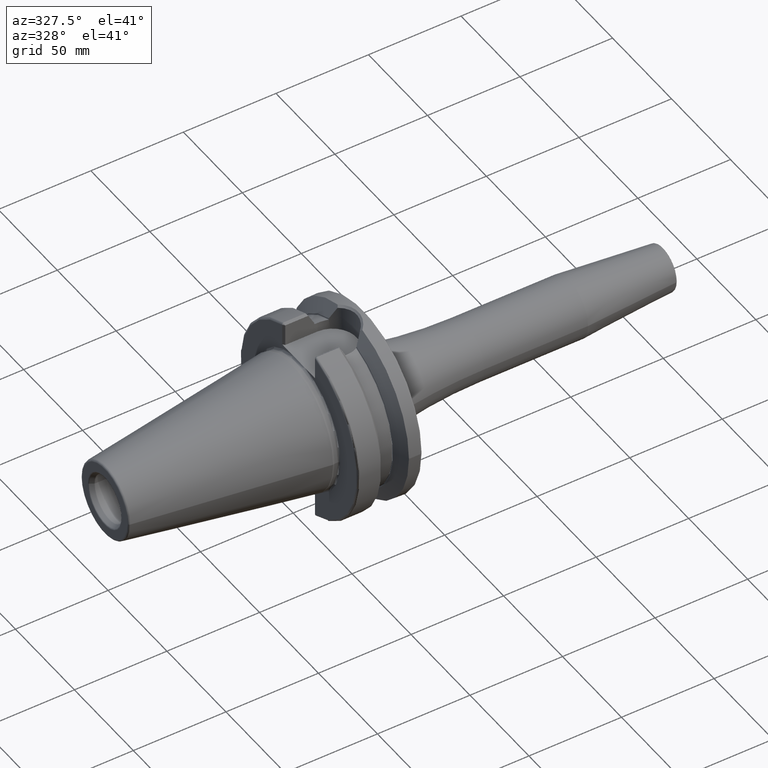
[diagram: clean part render]
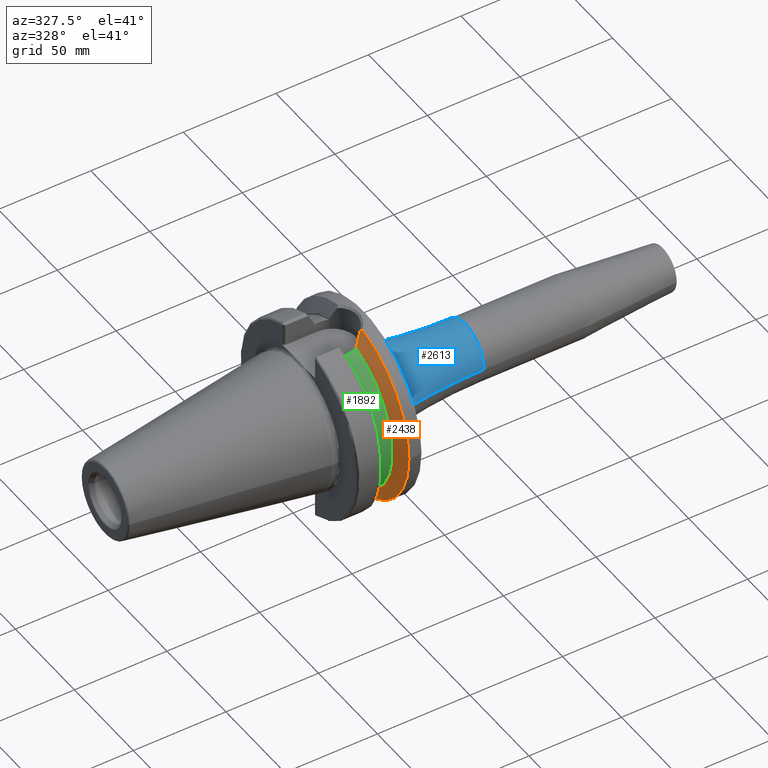
[diagram: same view with three faces highlighted in distinct colors, each labeled with its STEP entity id]
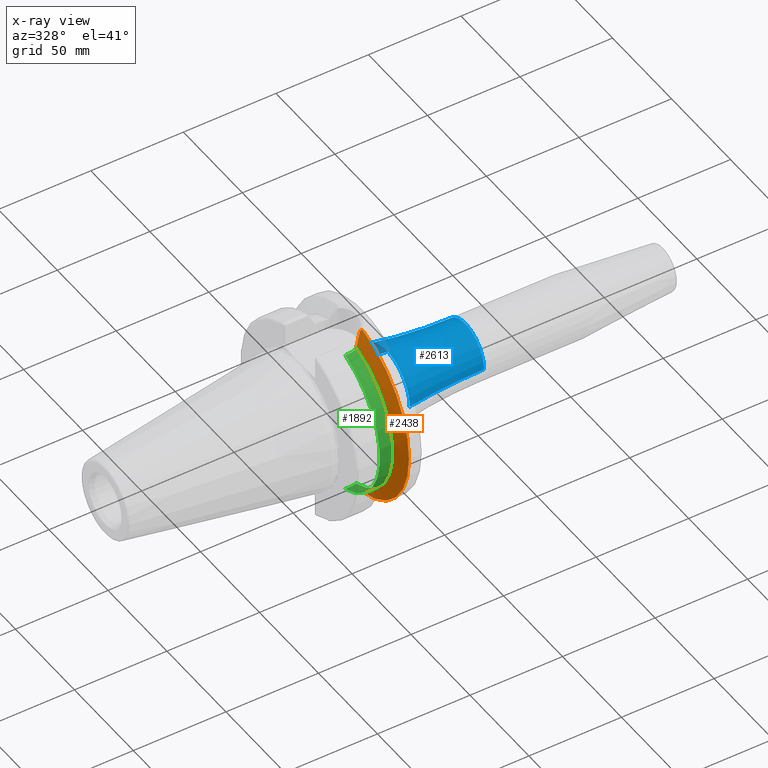
[diagram: x-ray of the same camera — body ghosted, the three highlighted faces saturated]
A machine part, auxiliary view with three faces highlighted in distinct colors.
The next image is the same camera in x-ray (body ghosted, the three faces saturated) — at least one of them is partly hidden behind the body in this view.
Their STEP definitions:

[orange] entity #2438 — the highlighted conical surface has half-angle 60 deg.
#245=CARTESIAN_POINT('',(3.073066823617E1,0.E0,0.E0));
#246=DIRECTION('',(1.E0,0.E0,0.E0));
#247=DIRECTION('',(0.E0,-1.E0,0.E0));
#248=AXIS2_PLACEMENT_3D('',#245,#246,#247);
#391=CARTESIAN_POINT('',(3.016210431090E1,-9.422168385896E0,-4.808834737145E1));
#392=CARTESIAN_POINT('',(2.984184465633E1,-9.721776927818E0,-4.746439031418E1));
#393=CARTESIAN_POINT('',(2.916110296190E1,-1.029742776940E1,-4.613939859477E1));
#394=CARTESIAN_POINT('',(2.801848253867E1,-1.107377940524E1,-4.392131510326E1));
#395=CARTESIAN_POINT('',(2.717774587881E1,-1.152030945269E1,-4.229484073698E1));
#396=CARTESIAN_POINT('',(2.67375E1,-1.172273032403E1,-4.144514217760E1));
#509=CARTESIAN_POINT('',(2.67375E1,-1.172273032403E1,4.144514217760E1));
#510=CARTESIAN_POINT('',(2.716326249817E1,-1.152696877347E1,4.226688702234E1));
#511=CARTESIAN_POINT('',(2.797767730262E1,-1.109641946289E1,4.384231514855E1));
#512=CARTESIAN_POINT('',(2.908877542636E1,-1.035012398508E1,4.599886190686E1));
#513=CARTESIAN_POINT('',(2.975376209181E1,-9.797469511785E0,4.729292626465E1));
#514=CARTESIAN_POINT('',(3.006746015187E1,-9.509826559925E0,4.790397267337E1));
#763=CARTESIAN_POINT('',(2.67375E1,0.E0,0.E0));
#764=DIRECTION('',(-1.E0,0.E0,0.E0));
#765=DIRECTION('',(0.E0,-2.721714149834E-1,-9.622487832499E-1));
#766=AXIS2_PLACEMENT_3D('',#763,#764,#765);
#768=CARTESIAN_POINT('',(3.073066823617E1,-1.024362896192E1,-4.892666166765E1));
#769=CARTESIAN_POINT('',(3.066616058198E1,-1.015105563406E1,-4.883189036884E1));
#770=CARTESIAN_POINT('',(3.053803749239E1,-9.966777409929E0,-4.864343408956E1));
#771=CARTESIAN_POINT('',(3.034851551012E1,-9.692952413043E0,-4.836399253968E1));
#772=CARTESIAN_POINT('',(3.022394652802E1,-9.512141392294E0,-4.817986911933E1));
#773=CARTESIAN_POINT('',(3.016210431090E1,-9.422168385896E0,-4.808834737145E1));
#792=CARTESIAN_POINT('',(3.073066823617E1,0.E0,0.E0));
#793=DIRECTION('',(1.E0,0.E0,0.E0));
#794=DIRECTION('',(0.E0,-2.094051574285E-1,9.778289625708E-1));
#795=AXIS2_PLACEMENT_3D('',#792,#793,#794);
#975=CARTESIAN_POINT('',(3.006746015187E1,-9.509826559925E0,4.790397267337E1));
#976=CARTESIAN_POINT('',(3.013934013849E1,-9.614488815529E0,4.801012460295E1));
#977=CARTESIAN_POINT('',(3.028430182064E1,-9.824984272055E0,4.822389705980E1));
#978=CARTESIAN_POINT('',(3.050537248019E1,-1.014426259119E1,4.854898701617E1));
#979=CARTESIAN_POINT('',(3.065516521337E1,-1.035945529402E1,4.876865319706E1));
#980=CARTESIAN_POINT('',(3.073066823617E1,-1.046764030696E1,4.887922526651E1));
#1232=CARTESIAN_POINT('',(2.67375E1,-1.172273032403E1,-4.144514217760E1));
#1233=CARTESIAN_POINT('',(2.67375E1,-1.172273032403E1,4.144514217760E1));
#1234=VERTEX_POINT('',#1232);
#1235=VERTEX_POINT('',#1233);
#1248=CARTESIAN_POINT('',(3.073066823617E1,-4.99875E1,-1.224340637448E-14));
#1249=CARTESIAN_POINT('',(3.073066823617E1,-1.024362896192E1,
-4.892666166765E1));
#1250=VERTEX_POINT('',#1248);
#1251=VERTEX_POINT('',#1249);
#1256=CARTESIAN_POINT('',(3.073066823617E1,-1.046764030696E1,4.887922526651E1));
#1257=VERTEX_POINT('',#1256);
#1348=VERTEX_POINT('',#514);
#1356=VERTEX_POINT('',#391);
#2421=CARTESIAN_POINT('',(2.873408411809E1,0.E0,0.E0));
#2422=DIRECTION('',(1.E0,0.E0,0.E0));
#2423=DIRECTION('',(0.E0,-1.E0,0.E0));
#2424=AXIS2_PLACEMENT_3D('',#2421,#2422,#2423);
#2425=CONICAL_SURFACE('',#2424,4.652931486589E1,6.E1);
#2427=ORIENTED_EDGE('',*,*,#2426,.T.);
#2428=ORIENTED_EDGE('',*,*,#1777,.T.);
#2430=ORIENTED_EDGE('',*,*,#2429,.T.);
#2431=ORIENTED_EDGE('',*,*,#1900,.T.);
#2432=ORIENTED_EDGE('',*,*,#1945,.T.);
#2433=ORIENTED_EDGE('',*,*,#1996,.T.);
#2435=ORIENTED_EDGE('',*,*,#2434,.T.);
#2436=EDGE_LOOP('',(#2427,#2428,#2430,#2431,#2432,#2433,#2435));
#2437=FACE_OUTER_BOUND('',#2436,.F.);
#2438=ADVANCED_FACE('',(#2437),#2425,.T.);
#249=CIRCLE('',#248,4.99875E1);
#397=B_SPLINE_CURVE_WITH_KNOTS('',3,(#391,#392,#393,#394,#395,#396),
.UNSPECIFIED.,.F.,.F.,(4,1,1,4),(0.E0,3.333333333333E-1,6.666666666667E-1,1.E0),
.UNSPECIFIED.);
#515=B_SPLINE_CURVE_WITH_KNOTS('',3,(#509,#510,#511,#512,#513,#514),
.UNSPECIFIED.,.F.,.F.,(4,1,1,4),(0.E0,3.333333333333E-1,6.666666666667E-1,1.E0),
.UNSPECIFIED.);
#767=CIRCLE('',#766,4.307112973177E1);
#774=B_SPLINE_CURVE_WITH_KNOTS('',3,(#768,#769,#770,#771,#772,#773),
.UNSPECIFIED.,.F.,.F.,(4,1,1,4),(0.E0,3.333333333333E-1,6.666666666667E-1,1.E0),
.UNSPECIFIED.);
#796=CIRCLE('',#795,4.99875E1);
#981=B_SPLINE_CURVE_WITH_KNOTS('',3,(#975,#976,#977,#978,#979,#980),
.UNSPECIFIED.,.F.,.F.,(4,1,1,4),(0.E0,3.333333333333E-1,6.666666666667E-1,1.E0),
.UNSPECIFIED.);
#1777=EDGE_CURVE('',#1250,#1251,#249,.T.);
#1900=EDGE_CURVE('',#1356,#1234,#397,.T.);
#1945=EDGE_CURVE('',#1234,#1235,#767,.T.);
#1996=EDGE_CURVE('',#1235,#1348,#515,.T.);
#2426=EDGE_CURVE('',#1257,#1250,#796,.T.);
#2429=EDGE_CURVE('',#1251,#1356,#774,.T.);
#2434=EDGE_CURVE('',#1348,#1257,#981,.T.);

[blue] entity #2613 — the highlighted toroidal blend (fillet) surface has major radius 266 mm and minor (blend) radius 250 mm.
#854=CARTESIAN_POINT('',(5.044680851064E1,0.E0,0.E0));
#855=DIRECTION('',(1.E0,0.E0,0.E0));
#856=DIRECTION('',(0.E0,1.E0,0.E0));
#857=AXIS2_PLACEMENT_3D('',#854,#855,#856);
#864=CARTESIAN_POINT('',(9.3E1,-2.66E2,-6.515120971464E-14));
#865=DIRECTION('',(0.E0,0.E0,1.E0));
#866=DIRECTION('',(0.E0,1.E0,0.E0));
#867=AXIS2_PLACEMENT_3D('',#864,#865,#866);
#869=CARTESIAN_POINT('',(9.3E1,2.66E2,3.257560485732E-14));
#870=DIRECTION('',(0.E0,0.E0,-1.E0));
#871=DIRECTION('',(0.E0,-1.E0,0.E0));
#872=AXIS2_PLACEMENT_3D('',#869,#870,#871);
#892=CARTESIAN_POINT('',(9.3E1,0.E0,0.E0));
#893=DIRECTION('',(1.E0,0.E0,0.E0));
#894=DIRECTION('',(0.E0,1.E0,0.E0));
#895=AXIS2_PLACEMENT_3D('',#892,#893,#894);
#1431=CARTESIAN_POINT('',(9.3E1,1.6E1,0.E0));
#1432=CARTESIAN_POINT('',(9.3E1,-1.6E1,0.E0));
#1433=VERTEX_POINT('',#1431);
#1434=VERTEX_POINT('',#1432);
#1439=CARTESIAN_POINT('',(5.044680851064E1,-1.964816644874E1,0.E0));
#1440=CARTESIAN_POINT('',(5.044680851064E1,1.964816644874E1,0.E0));
#1441=VERTEX_POINT('',#1439);
#1442=VERTEX_POINT('',#1440);
#2599=CARTESIAN_POINT('',(9.3E1,0.E0,0.E0));
#2600=DIRECTION('',(1.E0,0.E0,0.E0));
#2601=DIRECTION('',(0.E0,-1.E0,0.E0));
#2602=AXIS2_PLACEMENT_3D('',#2599,#2600,#2601);
#2603=TOROIDAL_SURFACE('',#2602,2.66E2,2.5E2);
#2604=ORIENTED_EDGE('',*,*,#2593,.F.);
#2606=ORIENTED_EDGE('',*,*,#2605,.F.);
#2608=ORIENTED_EDGE('',*,*,#2607,.T.);
#2610=ORIENTED_EDGE('',*,*,#2609,.T.);
#2611=EDGE_LOOP('',(#2604,#2606,#2608,#2610));
#2612=FACE_OUTER_BOUND('',#2611,.F.);
#2613=ADVANCED_FACE('',(#2612),#2603,.F.);
#858=CIRCLE('',#857,1.964816644874E1);
#868=CIRCLE('',#867,2.5E2);
#873=CIRCLE('',#872,2.5E2);
#896=CIRCLE('',#895,1.6E1);
#2593=EDGE_CURVE('',#1442,#1441,#858,.T.);
#2605=EDGE_CURVE('',#1433,#1442,#873,.T.);
#2607=EDGE_CURVE('',#1433,#1434,#896,.T.);
#2609=EDGE_CURVE('',#1434,#1441,#868,.T.);

[green] entity #1892 — the highlighted cylindrical surface (partial cylindrical patch) has radius 42.375 mm, axis along (1, 0, 0).
#308=DIRECTION('',(1.E0,0.E0,0.E0));
#309=VECTOR('',#308,1.435E0);
#310=CARTESIAN_POINT('',(1.99125E1,-1.29025E1,-4.036293000700E1));
#311=LINE('',#310,#309);
#368=CARTESIAN_POINT('',(2.64875E1,-1.183447955129E1,-4.068888937720E1));
#369=CARTESIAN_POINT('',(2.593767013313E1,-1.207328392824E1,-4.061943244291E1));
#370=CARTESIAN_POINT('',(2.482251458205E1,-1.246756636174E1,-4.050035379603E1));
#371=CARTESIAN_POINT('',(2.309259987910E1,-1.282394305606E1,-4.038817378858E1));
#372=CARTESIAN_POINT('',(2.193211835188E1,-1.29025E1,-4.036293000700E1));
#373=CARTESIAN_POINT('',(2.13475E1,-1.29025E1,-4.036293000700E1));
#375=CARTESIAN_POINT('',(1.99125E1,0.E0,0.E0));
#376=DIRECTION('',(-1.E0,0.E0,0.E0));
#377=DIRECTION('',(0.E0,-3.044837758112E-1,-9.525175222891E-1));
#378=AXIS2_PLACEMENT_3D('',#375,#376,#377);
#380=CARTESIAN_POINT('',(2.13475E1,-1.29025E1,4.036293000700E1));
#381=CARTESIAN_POINT('',(2.193211835188E1,-1.29025E1,4.036293000700E1));
#382=CARTESIAN_POINT('',(2.309259987910E1,-1.282394305606E1,4.038817378858E1));
#383=CARTESIAN_POINT('',(2.482251458205E1,-1.246756636174E1,4.050035379603E1));
#384=CARTESIAN_POINT('',(2.593767013313E1,-1.207328392824E1,4.061943244291E1));
#385=CARTESIAN_POINT('',(2.64875E1,-1.183447955129E1,4.068888937720E1));
#463=CARTESIAN_POINT('',(2.64875E1,0.E0,0.E0));
#464=DIRECTION('',(-1.E0,0.E0,0.E0));
#465=DIRECTION('',(0.E0,-2.792797534229E-1,-9.602097788130E-1));
#466=AXIS2_PLACEMENT_3D('',#463,#464,#465);
#548=DIRECTION('',(1.E0,0.E0,0.E0));
#549=VECTOR('',#548,1.435E0);
#550=CARTESIAN_POINT('',(1.99125E1,-1.29025E1,4.036293000700E1));
#551=LINE('',#550,#549);
#1204=CARTESIAN_POINT('',(1.99125E1,-1.29025E1,-4.036293000700E1));
#1205=CARTESIAN_POINT('',(1.99125E1,-1.29025E1,4.036293000700E1));
#1206=VERTEX_POINT('',#1204);
#1207=VERTEX_POINT('',#1205);
#1216=CARTESIAN_POINT('',(2.64875E1,-1.183447955129E1,-4.068888937720E1));
#1217=CARTESIAN_POINT('',(2.64875E1,-1.183447955129E1,4.068888937720E1));
#1218=VERTEX_POINT('',#1216);
#1219=VERTEX_POINT('',#1217);
#1345=CARTESIAN_POINT('',(2.13475E1,-1.29025E1,4.036293000700E1));
#1346=VERTEX_POINT('',#1345);
#1353=CARTESIAN_POINT('',(2.13475E1,-1.29025E1,-4.036293000700E1));
#1354=VERTEX_POINT('',#1353);
#1875=CARTESIAN_POINT('',(1.491626494021E1,0.E0,0.E0));
#1876=DIRECTION('',(1.E0,0.E0,0.E0));
#1877=DIRECTION('',(0.E0,-1.E0,0.E0));
#1878=AXIS2_PLACEMENT_3D('',#1875,#1876,#1877);
#1879=CYLINDRICAL_SURFACE('',#1878,4.2375E1);
#1881=ORIENTED_EDGE('',*,*,#1880,.T.);
#1882=ORIENTED_EDGE('',*,*,#1814,.F.);
#1883=ORIENTED_EDGE('',*,*,#1848,.T.);
#1885=ORIENTED_EDGE('',*,*,#1884,.T.);
#1887=ORIENTED_EDGE('',*,*,#1886,.T.);
#1889=ORIENTED_EDGE('',*,*,#1888,.F.);
#1890=EDGE_LOOP('',(#1881,#1882,#1883,#1885,#1887,#1889));
#1891=FACE_OUTER_BOUND('',#1890,.F.);
#1892=ADVANCED_FACE('',(#1891),#1879,.T.);
#374=B_SPLINE_CURVE_WITH_KNOTS('',3,(#368,#369,#370,#371,#372,#373),
.UNSPECIFIED.,.F.,.F.,(4,1,1,4),(0.E0,3.333333333333E-1,6.666666666667E-1,1.E0),
.UNSPECIFIED.);
#379=CIRCLE('',#378,4.2375E1);
#386=B_SPLINE_CURVE_WITH_KNOTS('',3,(#380,#381,#382,#383,#384,#385),
.UNSPECIFIED.,.F.,.F.,(4,1,1,4),(0.E0,3.333333333333E-1,6.666666666667E-1,1.E0),
.UNSPECIFIED.);
#467=CIRCLE('',#466,4.2375E1);
#1814=EDGE_CURVE('',#1206,#1354,#311,.T.);
#1848=EDGE_CURVE('',#1206,#1207,#379,.T.);
#1880=EDGE_CURVE('',#1218,#1354,#374,.T.);
#1884=EDGE_CURVE('',#1207,#1346,#551,.T.);
#1886=EDGE_CURVE('',#1346,#1219,#386,.T.);
#1888=EDGE_CURVE('',#1218,#1219,#467,.T.);